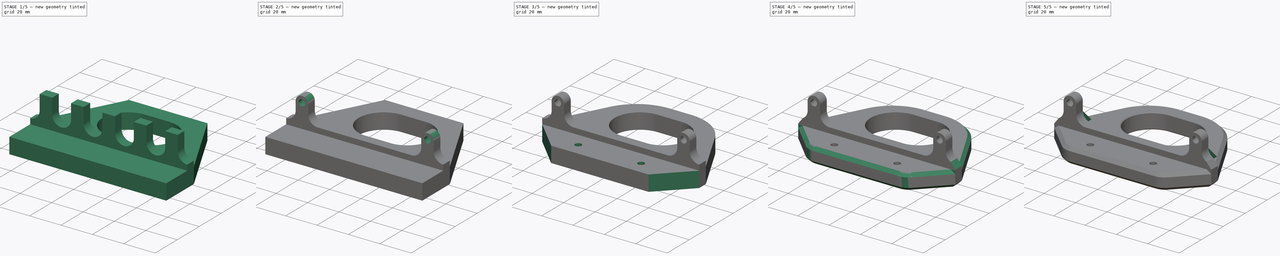
[diagram: build sequence overview — one tinted view per stage of 5, left to right]
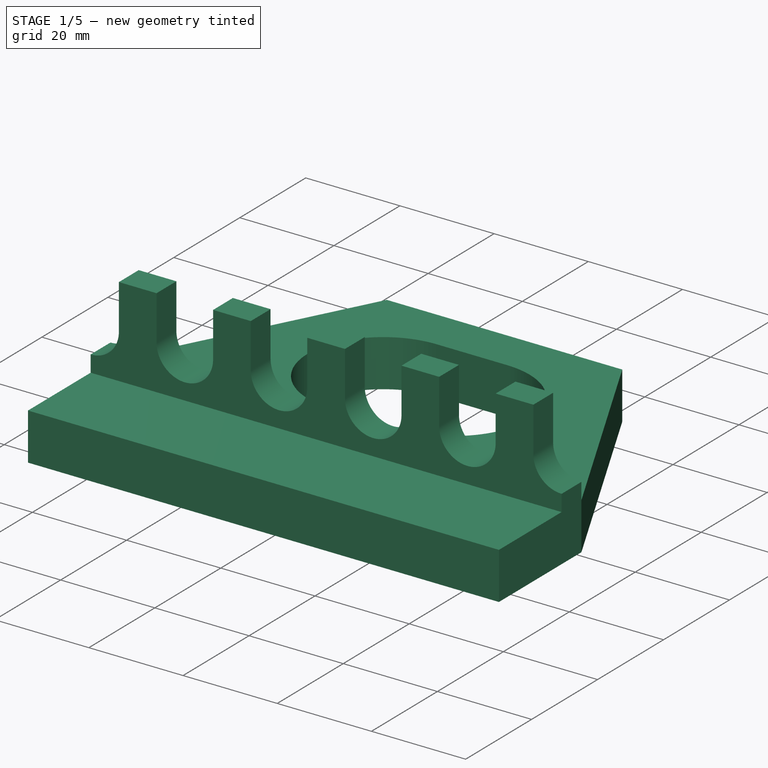
[diagram: stage 1 of 5 — iso view after this stage's code; geometry added in this stage tinted green]
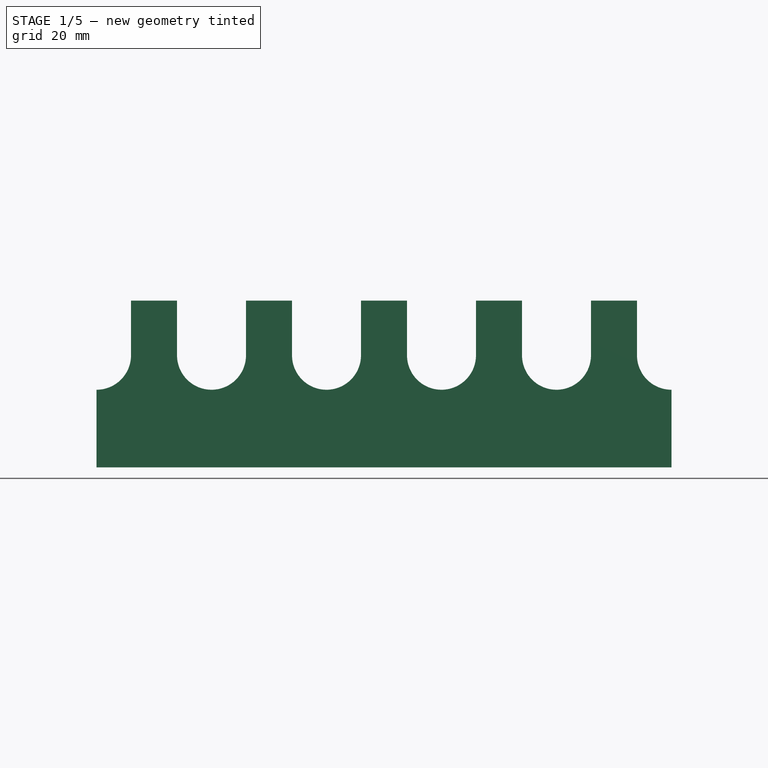
[diagram: stage 1 of 5 — front view after this stage's code; geometry added in this stage tinted green]
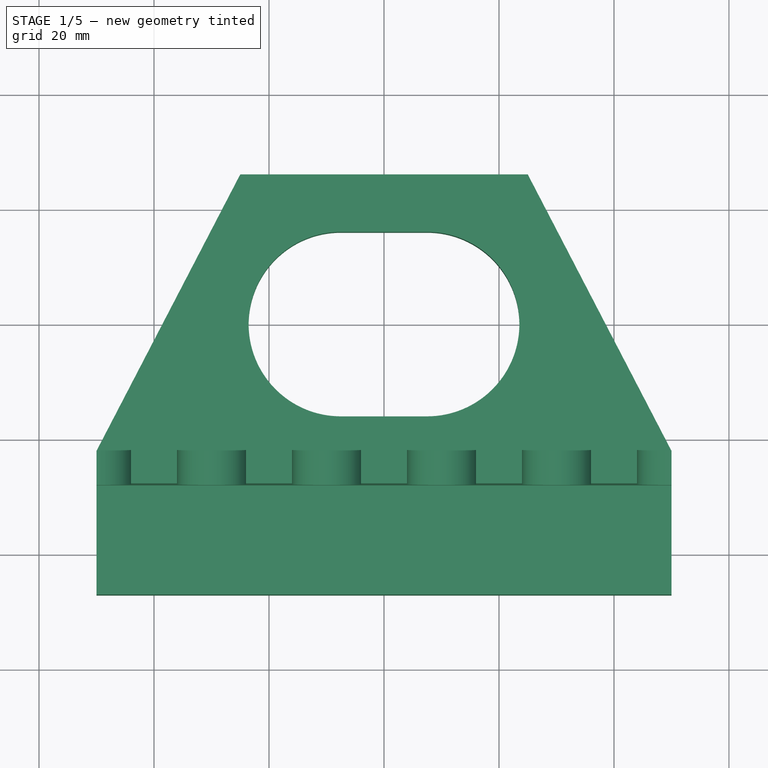
[diagram: stage 1 of 5 — top view after this stage's code; geometry added in this stage tinted green]
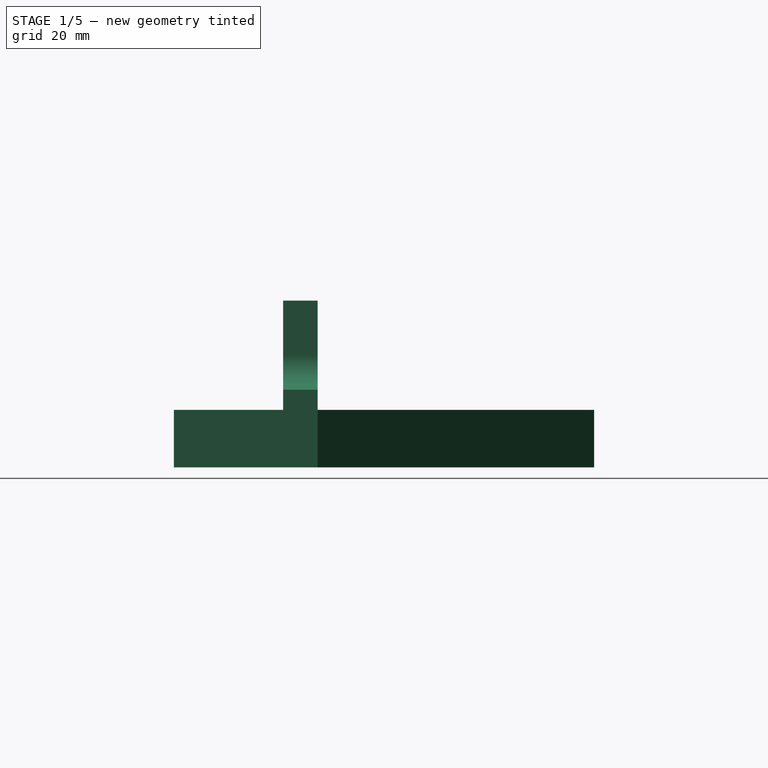
[diagram: stage 1 of 5 — right view after this stage's code; geometry added in this stage tinted green]
FCSTD DOCUMENT  (FreeCAD 0.18.4R)
Label: yoke
License: All rights reserved
LicenseURL: http://en.wikipedia.org/wiki/All_rights_reserved
objects: Sketcher::SketchObject×8, PartDesign::Pocket×5, PartDesign::Chamfer×5, PartDesign::Pad×3, PartDesign::Fillet×3, PartDesign::Mirrored×1, PartDesign::Body×1
note: 34 computed .brp shape members not serialized (recipe doc carries the construction recipe); baked Part::Feature solids carry a one-line shape summary decoded from their .brp

FEATURE [Sketcher::SketchObject] Sketch
  MapMode = 5
  Support = -> [XY_Plane]
  sketch-geometry (10):
    g0: ArcOfCircle CenterX=-7.5 CenterY=3e-16 CenterZ=0 NormalX=0 NormalY=0 NormalZ=1 AngleXU=0 Radius=16.05 StartAngle=1.5708 EndAngle=4.71239
    g1: ArcOfCircle CenterX=7.5 CenterY=-3e-16 CenterZ=0 NormalX=0 NormalY=0 NormalZ=1 AngleXU=0 Radius=16.05 StartAngle=4.71239 EndAngle=7.85398
    g2: LineSegment StartX=-7.5 StartY=-16.05 StartZ=0 EndX=7.5 EndY=-16.05 EndZ=0
    g3: LineSegment StartX=-7.5 StartY=16.05 StartZ=0 EndX=7.5 EndY=16.05 EndZ=0
    g4: LineSegment StartX=50 StartY=-22.05 StartZ=0 EndX=25 EndY=26.05 EndZ=0
    g5: LineSegment StartX=25 StartY=26.05 StartZ=0 EndX=-25 EndY=26.05 EndZ=0
    g6: LineSegment StartX=-25 StartY=26.05 StartZ=0 EndX=-50 EndY=-22.05 EndZ=0
    g7: LineSegment StartX=-50 StartY=-22.05 StartZ=0 EndX=-50 EndY=-47.05 EndZ=0
    g8: LineSegment StartX=-50 StartY=-47.05 StartZ=0 EndX=50 EndY=-47.05 EndZ=0
    g9: LineSegment StartX=50 StartY=-47.05 StartZ=0 EndX=50 EndY=-22.05 EndZ=0
  constraints (25):
    c: Tangent(g0,g3) = 1.5708
    c: Tangent(g0,g2) = -1.5708
    c: Tangent(g2,g1) = -1.5708
    c: Tangent(g3,g1) = 1.5708
    c: Horizontal(g2)
    c: Equal(g0,g1)
    c: Symmetric(g0,g1,g-1)
    c: DistanceX(g0,g1) = 15
    c: Radius(g1) = 16.05
    c: Coincident(g4,g5)
    c: Coincident(g5,g6)
    c: Symmetric(g6,g4,g-2)
    c: DistanceX(g5,g5) = 50
    c: Symmetric(g5,g4,g-2)
    c: DistanceY(g0,g5) = 10
    c: DistanceY(g4,g1) = 6
    c: Coincident(g6,g7)
    c: Vertical(g7)
    c: Coincident(g7,g8)
    c: Horizontal(g8)
    c: Coincident(g8,g9)
    c: Coincident(g9,g4)
    c: Vertical(g9)
    c: DistanceY(g7,g7) = 25
    c: DistanceX(g8,g8) = 100
FEATURE [PartDesign::Pad] Pad
  Length = 10
  Length2 = 100
  Profile = -> Sketch
  Refine = true
  Type = 0
FEATURE [Sketcher::SketchObject] Sketch001
  ExternalGeometry = -> [Pad]
  MapMode = 5
  Placement = pos=(0,0,10) rot=(0,0,1;0rad)
  Support = -> [Pad]
  sketch-geometry (4):
    g0: LineSegment StartX=-50 StartY=-22.05 StartZ=0 EndX=50 EndY=-22.05 EndZ=0
    g1: LineSegment StartX=50 StartY=-22.05 StartZ=0 EndX=50 EndY=-28.05 EndZ=0
    g2: LineSegment StartX=50 StartY=-28.05 StartZ=0 EndX=-50 EndY=-28.05 EndZ=0
    g3: LineSegment StartX=-50 StartY=-28.05 StartZ=0 EndX=-50 EndY=-22.05 EndZ=0
  constraints (11):
    c: Coincident(g0,g1)
    c: Coincident(g1,g2)
    c: Coincident(g2,g3)
    c: Coincident(g3,g0)
    c: Horizontal(g0)
    c: Horizontal(g2)
    c: Vertical(g1)
    c: Vertical(g3)
    c: Coincident(g0,g-3)
    c: PointOnObject(g1,g-4)
    c: DistanceY(g1,g1) = 6
FEATURE [PartDesign::Pad] Pad001
  BaseFeature = -> Pad
  Length = 19
  Length2 = 100
  Profile = -> Sketch001
  Refine = true
  Type = 0
FEATURE [Sketcher::SketchObject] Sketch002
  ExternalGeometry = -> [Pad001]
  MapMode = 5
  Placement = pos=(0,-22.05,0) rot=(0,0.707107,0.707107;3.14159rad)
  Support = -> [Pad001]
  sketch-geometry (35):
    g0: LineSegment [constr] StartX=-50 StartY=19.5 StartZ=0 EndX=50 EndY=19.5 EndZ=0
    g1: GeomPoint X=-10 Y=19.5 Z=0
    g2: GeomPoint X=-30 Y=19.5 Z=0
    g3: GeomPoint X=10 Y=19.5 Z=0
    g4: GeomPoint X=30 Y=19.5 Z=0
    g5: Circle [constr] CenterX=-30 CenterY=19.5 CenterZ=0 NormalX=0 NormalY=0 NormalZ=1 AngleXU=0 Radius=4
    g6: Circle [constr] CenterX=-10 CenterY=19.5 CenterZ=0 NormalX=0 NormalY=0 NormalZ=1 AngleXU=0 Radius=4
    g7: Circle [constr] CenterX=10 CenterY=19.5 CenterZ=0 NormalX=0 NormalY=0 NormalZ=1 AngleXU=0 Radius=4
    g8: Circle [constr] CenterX=30 CenterY=19.5 CenterZ=0 NormalX=0 NormalY=0 NormalZ=1 AngleXU=0 Radius=4
    g9: Circle [constr] CenterX=-50 CenterY=19.5 CenterZ=0 NormalX=0 NormalY=0 NormalZ=1 AngleXU=0 Radius=4
    g10: Circle [constr] CenterX=50 CenterY=19.5 CenterZ=0 NormalX=0 NormalY=0 NormalZ=1 AngleXU=0 Radius=4
    g11: ArcOfCircle CenterX=-50 CenterY=19.5 CenterZ=0 NormalX=0 NormalY=0 NormalZ=1 AngleXU=0 Radius=6 StartAngle=4.71239 EndAngle=6.28319
    g12: ArcOfCircle CenterX=-30 CenterY=19.5 CenterZ=0 NormalX=0 NormalY=0 NormalZ=1 AngleXU=0 Radius=6 StartAngle=3.14159 EndAngle=6.28319
    g13: ArcOfCircle CenterX=-10 CenterY=19.5 CenterZ=0 NormalX=0 NormalY=0 NormalZ=1 AngleXU=0 Radius=6 StartAngle=3.14159 EndAngle=6.28319
    g14: ArcOfCircle CenterX=10 CenterY=19.5 CenterZ=0 NormalX=0 NormalY=0 NormalZ=1 AngleXU=0 Radius=6 StartAngle=3.14159 EndAngle=6.28319
    g15: ArcOfCircle CenterX=30 CenterY=19.5 CenterZ=0 NormalX=0 NormalY=0 NormalZ=1 AngleXU=0 Radius=6 StartAngle=3.14159 EndAngle=6.28319
    g16: ArcOfCircle CenterX=50 CenterY=19.5 CenterZ=0 NormalX=0 NormalY=0 NormalZ=1 AngleXU=0 Radius=6 StartAngle=3.14159 EndAngle=4.71239
    g17: LineSegment StartX=-50 StartY=13.5 StartZ=0 EndX=-50 EndY=29 EndZ=0
    g18: LineSegment StartX=-50 StartY=29 StartZ=0 EndX=-44 EndY=29 EndZ=0
    g19: LineSegment StartX=-44 StartY=29 StartZ=0 EndX=-44 EndY=19.5 EndZ=0
    g20: LineSegment StartX=-36 StartY=19.5 StartZ=0 EndX=-36 EndY=29 EndZ=0
    g21: LineSegment StartX=-36 StartY=29 StartZ=0 EndX=-24 EndY=29 EndZ=0
    g22: LineSegment StartX=-24 StartY=29 StartZ=0 EndX=-24 EndY=19.5 EndZ=0
    g23: LineSegment StartX=-16 StartY=19.5 StartZ=0 EndX=-16 EndY=29 EndZ=0
    g24: LineSegment StartX=-16 StartY=29 StartZ=0 EndX=-4 EndY=29 EndZ=0
    g25: LineSegment StartX=-4 StartY=29 StartZ=0 EndX=-4 EndY=19.5 EndZ=0
    g26: LineSegment StartX=4 StartY=19.5 StartZ=0 EndX=4 EndY=29 EndZ=0
    g27: LineSegment StartX=4 StartY=29 StartZ=0 EndX=16 EndY=29 EndZ=0
    g28: LineSegment StartX=16 StartY=29 StartZ=0 EndX=16 EndY=19.5 EndZ=0
    g29: LineSegment StartX=24 StartY=19.5 StartZ=0 EndX=24 EndY=29 EndZ=0
    g30: LineSegment StartX=24 StartY=29 StartZ=0 EndX=36 EndY=29 EndZ=0
    g31: LineSegment StartX=36 StartY=29 StartZ=0 EndX=36 EndY=19.5 EndZ=0
    g32: LineSegment StartX=44 StartY=19.5 StartZ=0 EndX=44 EndY=29 EndZ=0
    g33: LineSegment StartX=44 StartY=29 StartZ=0 EndX=50 EndY=29 EndZ=0
    g34: LineSegment StartX=50 StartY=29 StartZ=0 EndX=50 EndY=13.5 EndZ=0
  constraints (89):
    c: DistanceY(g-3,g-3) = 19
    c: PointOnObject(g0,g-4)
    c: Horizontal(g0)
    c: Symmetric(g-3,g-3,g0)
    c: PointOnObject(g1,g0)
    c: PointOnObject(g2,g0)
    c: DistanceX(g3,g4) = 20
    c: DistanceX(g1,g3) = 20
    c: Symmetric(g2,g4,g-2)
    c: Symmetric(g1,g3,g-2)
    c: Coincident(g5,g2)
    c: Coincident(g6,g1)
    c: Coincident(g7,g3)
    c: Coincident(g8,g4)
    c: PointOnObject(g10,g0)
    c: DistanceX(g4,g10) = 20
    c: Symmetric(g0,g9,g-2)
    c: Equal(g9,g5)
    c: Equal(g5,g6)
    c: Equal(g6,g7)
    c: Equal(g7,g8)
    c: Equal(g8,g10)
    c: Coincident(g11,g0)
    c: PointOnObject(g11,g-3)
    c: Coincident(g12,g2)
    c: Coincident(g14,g3)
    c: Coincident(g15,g4)
    c: Coincident(g16,g0)
    c: PointOnObject(g16,g-4)
    c: Coincident(g13,g1)
    c: Equal(g11,g12)
    c: Equal(g12,g13)
    c: Equal(g13,g14)
    c: Equal(g14,g15)
    c: Equal(g15,g16)
    c: Horizontal(g11,g12)
    c: Horizontal(g12,g12)
    c: Horizontal(g12,g13)
    c: Horizontal(g13,g13)
    c: Horizontal(g13,g14)
    c: Horizontal(g14,g14)
    c: Horizontal(g14,g15)
    c: Horizontal(g15,g15)
    c: Horizontal(g15,g16)
    c: PointOnObject(g12,g0)
    c: Radius(g12) = 6
    c: Radius(g5) = 4
    c: Coincident(g11,g17)
    c: Coincident(g17,g18)
    c: PointOnObject(g18,g-5)
    c: Horizontal(g18)
    c: Coincident(g18,g19)
    c: Coincident(g19,g11)
    c: Vertical(g17)
    c: Vertical(g19)
    c: Tangent(g12,g20) = 1.5708
    c: Coincident(g20,g21)
    c: PointOnObject(g21,g-5)
    c: Horizontal(g21)
    c: Coincident(g21,g22)
    c: Coincident(g22,g12)
    c: Tangent(g13,g23) = 1.5708
    c: Coincident(g23,g24)
    c: PointOnObject(g24,g-5)
    c: Horizontal(g24)
    c: Coincident(g24,g25)
    c: Coincident(g25,g13)
    c: Tangent(g14,g26) = 1.5708
    c: Coincident(g26,g27)
    c: PointOnObject(g27,g-5)
    c: Horizontal(g27)
    c: Coincident(g27,g28)
    c: Coincident(g28,g14)
    c: Vertical(g28)
    c: Tangent(g15,g29) = 1.5708
    c: Coincident(g29,g30)
    c: PointOnObject(g30,g-5)
    c: Horizontal(g30)
    c: Coincident(g30,g31)
    c: Coincident(g31,g15)
    c: Vertical(g31)
    c: Tangent(g16,g32) = 1.5708
    c: Coincident(g32,g33)
    c: Coincident(g33,g-5)
    c: Horizontal(g33)
    c: Coincident(g33,g34)
    c: Coincident(g34,g16)
    c: Vertical(g25)
    c: Vertical(g22)
FEATURE [PartDesign::Pocket] Pocket
  BaseFeature = -> Pad001
  Length = 5
  Length2 = 100
  Profile = -> Sketch002
  Refine = true
  Type = 1
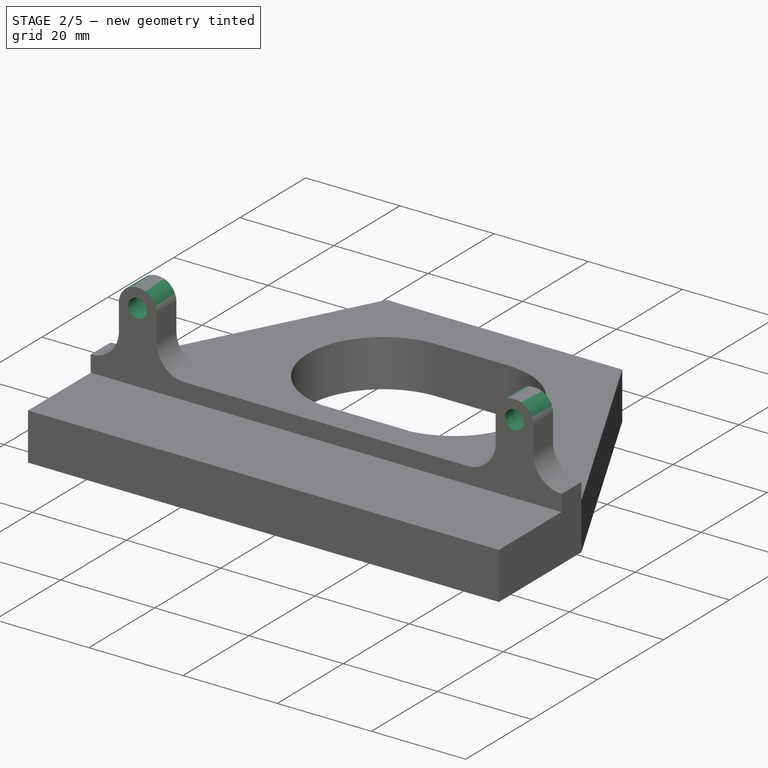
[diagram: stage 2 of 5 — iso view after this stage's code; geometry added in this stage tinted green]
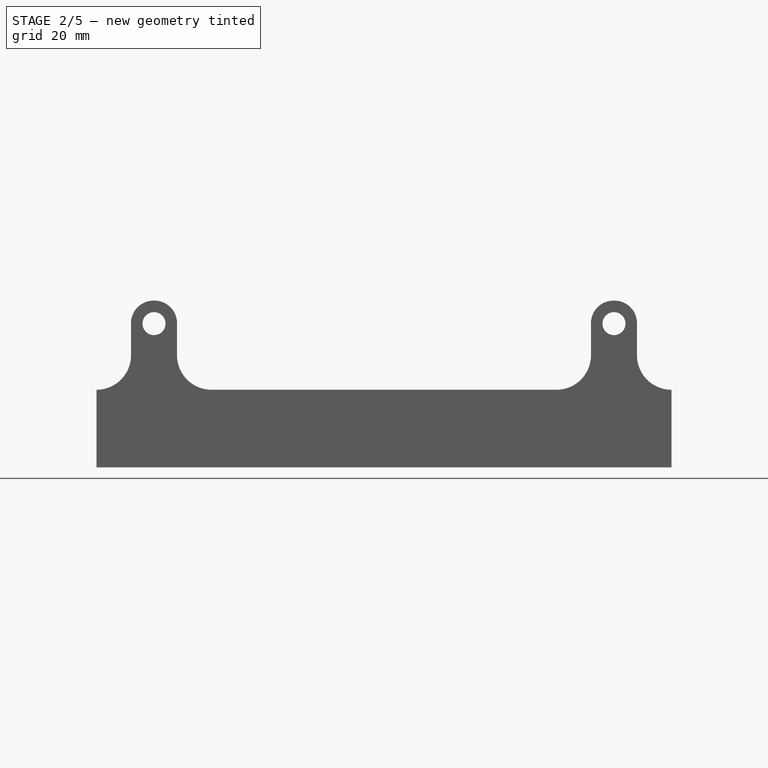
[diagram: stage 2 of 5 — front view after this stage's code; geometry added in this stage tinted green]
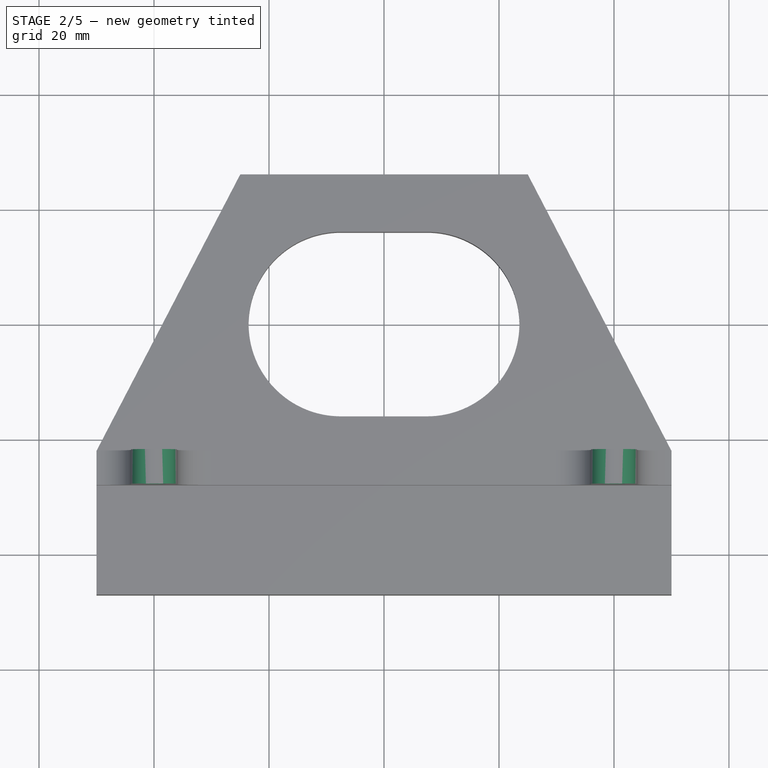
[diagram: stage 2 of 5 — top view after this stage's code; geometry added in this stage tinted green]
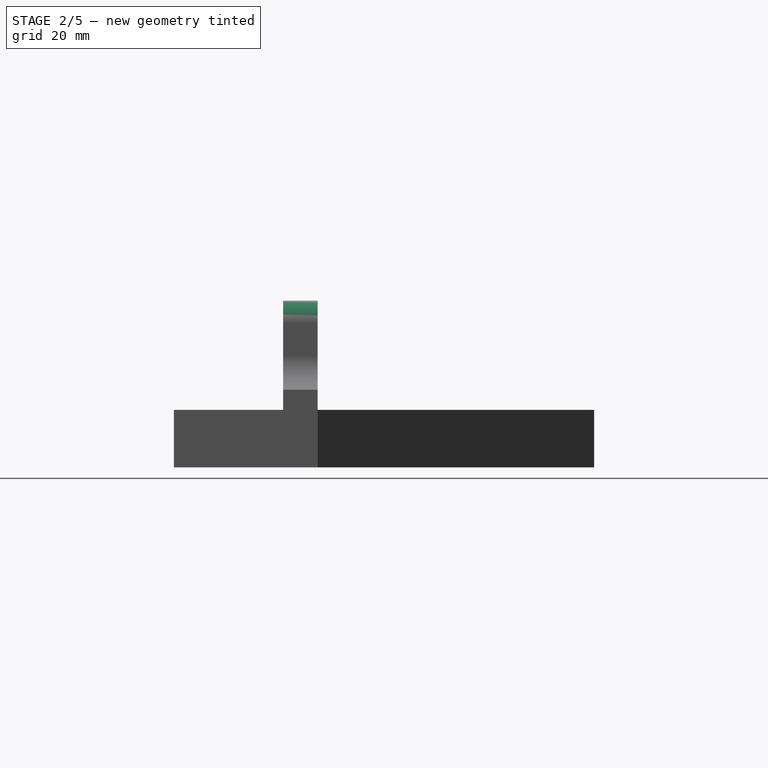
[diagram: stage 2 of 5 — right view after this stage's code; geometry added in this stage tinted green]
FEATURE [Sketcher::SketchObject] Sketch003
  ExternalGeometry = -> [Pocket]
  MapMode = 5
  Placement = pos=(0,-22.05,0) rot=(0,0.707107,0.707107;3.14159rad)
  Support = -> [Pocket]
  sketch-geometry (4):
    g0: LineSegment StartX=-30 StartY=29 StartZ=0 EndX=30 EndY=29 EndZ=0
    g1: LineSegment StartX=30 StartY=29 StartZ=0 EndX=30 EndY=13.5 EndZ=0
    g2: LineSegment StartX=30 StartY=13.5 StartZ=0 EndX=-30 EndY=13.5 EndZ=0
    g3: LineSegment StartX=-30 StartY=13.5 StartZ=0 EndX=-30 EndY=29 EndZ=0
  constraints (12):
    c: Coincident(g0,g1)
    c: Coincident(g1,g2)
    c: Coincident(g2,g3)
    c: Horizontal(g0)
    c: Horizontal(g2)
    c: Vertical(g1)
    c: Vertical(g3)
    c: Tangent(g2,g-3)
    c: Coincident(g3,g0)
    c: PointOnObject(g2,g-4)
    c: PointOnObject(g1,g-5)
    c: PointOnObject(g-6,g0)
FEATURE [PartDesign::Pocket] Pocket001
  BaseFeature = -> Pocket
  Length = 5
  Length2 = 100
  Profile = -> Sketch003
  Refine = true
  Type = 1
FEATURE [Sketcher::SketchObject] Sketch004
  ExternalGeometry = -> [Pocket001]
  MapMode = 5
  Placement = pos=(0,-22.05,0) rot=(0,0.707107,0.707107;3.14159rad)
  Support = -> [Pocket001]
  sketch-geometry (3):
    g0: Circle CenterX=-40 CenterY=25 CenterZ=0 NormalX=0 NormalY=0 NormalZ=1 AngleXU=0 Radius=2
    g1: Circle CenterX=40 CenterY=25 CenterZ=0 NormalX=0 NormalY=0 NormalZ=1 AngleXU=0 Radius=2
    g2: LineSegment [constr] StartX=-40 StartY=25 StartZ=0 EndX=-40 EndY=29 EndZ=0
  constraints (7):
    c: Equal(g1,g0)
    c: Symmetric(g0,g1,g-2)
    c: Radius(g0) = 2
    c: Coincident(g2,g0)
    c: PointOnObject(g2,g-3)
    c: Symmetric(g-3,g-3,g2)
    c: DistanceY(g0,g-3) = 4
FEATURE [PartDesign::Pocket] Pocket002
  BaseFeature = -> Pocket001
  Length = 5
  Length2 = 100
  Profile = -> Sketch004
  Refine = true
  Type = 1
FEATURE [Sketcher::SketchObject] Sketch005
  ExternalGeometry = -> [Pocket002]
  MapMode = 5
  Placement = pos=(0,-22.05,0) rot=(0,0.707107,0.707107;3.14159rad)
  Support = -> [Pocket002]
  sketch-geometry (2):
    g0: Circle CenterX=-40 CenterY=25 CenterZ=0 NormalX=0 NormalY=0 NormalZ=1 AngleXU=0 Radius=3
    g1: Circle CenterX=40 CenterY=25 CenterZ=0 NormalX=0 NormalY=0 NormalZ=1 AngleXU=0 Radius=3
  constraints (4):
    c: Coincident(g0,g-3)
    c: Coincident(g1,g-4)
    c: Radius(g1) = 3
    c: Equal(g0,g1)
FEATURE [PartDesign::Pocket] Pocket003
  BaseFeature = -> Pocket002
  Length = 3.5
  Length2 = 100
  Profile = -> Sketch005
  Refine = true
  Type = 0
FEATURE [PartDesign::Fillet] Fillet
  Base = -> Pocket003 [Edge69,Edge67,Edge70,Edge68]
  BaseFeature = -> Pocket003
  Radius = 3.9
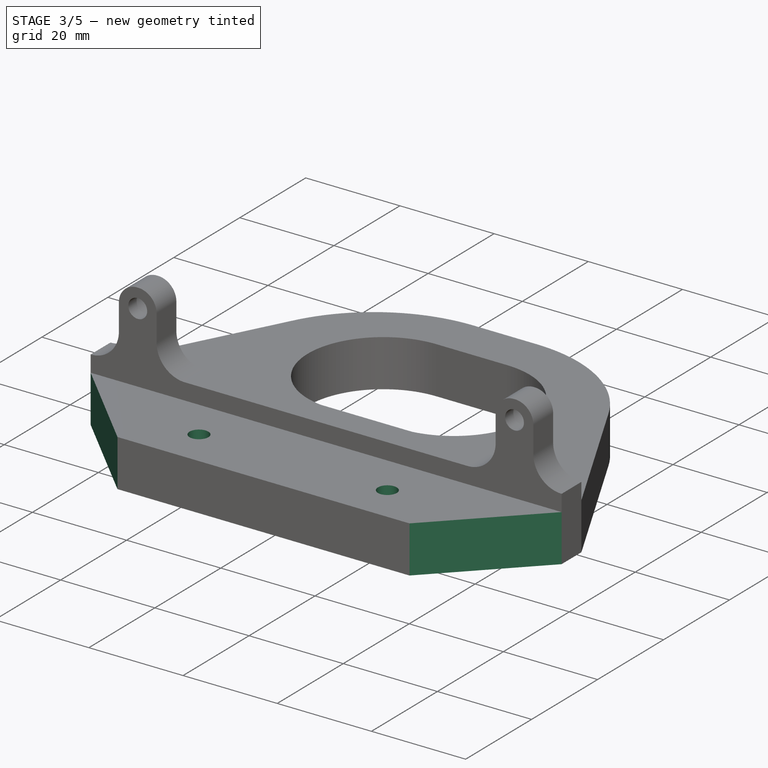
[diagram: stage 3 of 5 — iso view after this stage's code; geometry added in this stage tinted green]
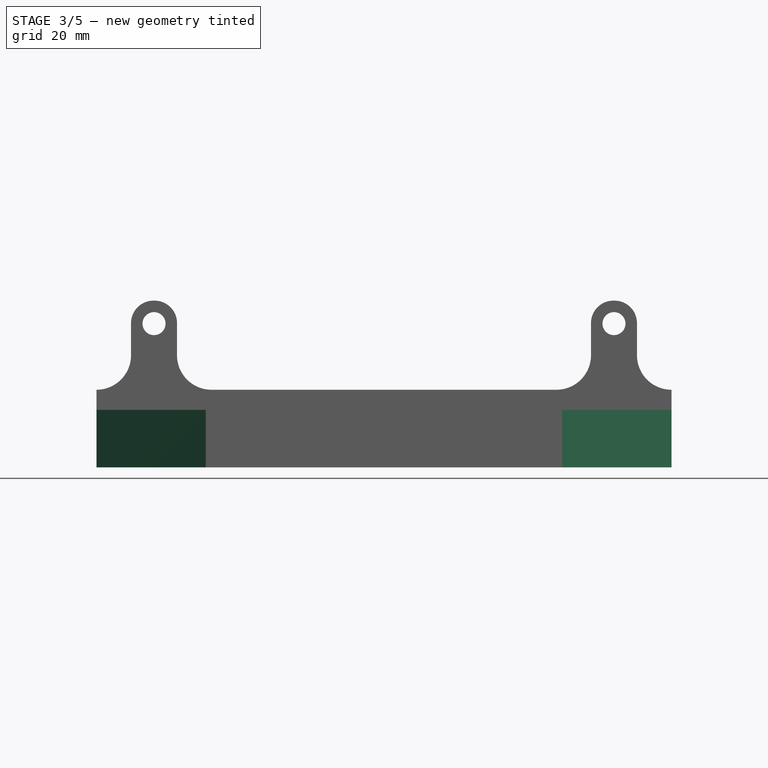
[diagram: stage 3 of 5 — front view after this stage's code; geometry added in this stage tinted green]
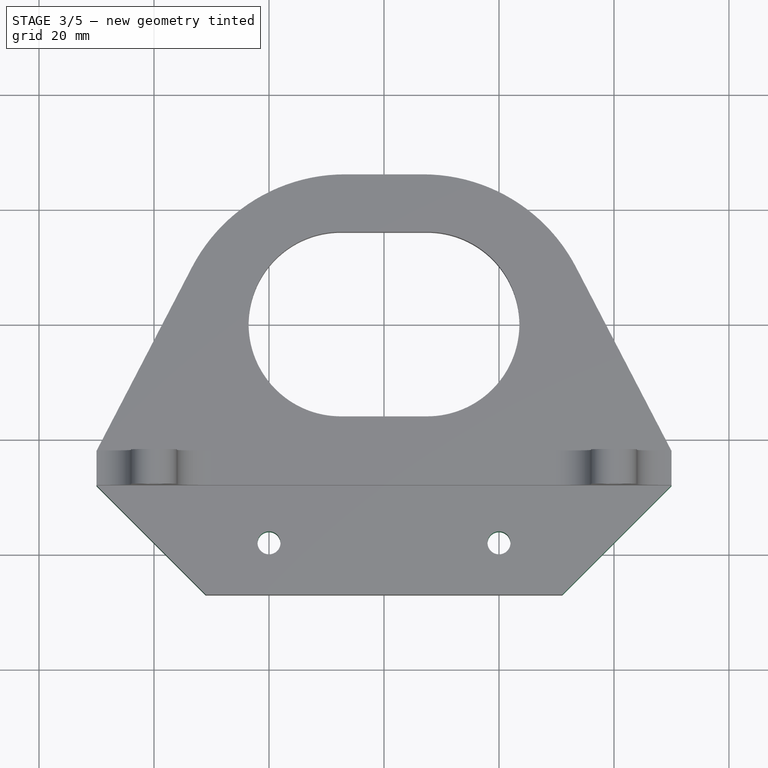
[diagram: stage 3 of 5 — top view after this stage's code; geometry added in this stage tinted green]
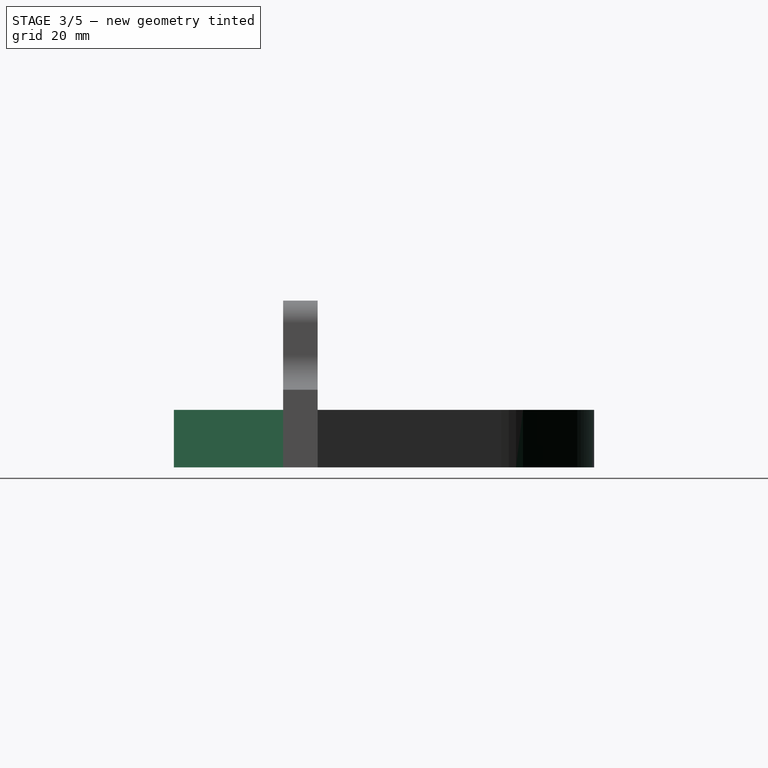
[diagram: stage 3 of 5 — right view after this stage's code; geometry added in this stage tinted green]
FEATURE [PartDesign::Fillet] Fillet001
  Base = -> Fillet [Edge71,Edge80]
  BaseFeature = -> Fillet
  Radius = 30
FEATURE [Sketcher::SketchObject] Sketch006
  ExternalGeometry = -> [Fillet001]
  MapMode = 5
  Placement = pos=(0,0,10) rot=(0,0,1;0rad)
  Support = -> [Fillet001]
  sketch-geometry (2):
    g0: Circle CenterX=-20 CenterY=-38.05 CenterZ=0 NormalX=0 NormalY=0 NormalZ=1 AngleXU=0 Radius=2
    g1: Circle CenterX=20 CenterY=-38.05 CenterZ=0 NormalX=0 NormalY=0 NormalZ=1 AngleXU=0 Radius=2
  constraints (5):
    c: Symmetric(g1,g0,g-2)
    c: DistanceX(g0,g1) = 40
    c: Radius(g0) = 2
    c: Equal(g1,g0)
    c: DistanceY(g0,g-3) = 10
FEATURE [PartDesign::Pocket] Pocket004
  BaseFeature = -> Fillet001
  Length = 5
  Length2 = 100
  Profile = -> Sketch006
  Refine = true
  Type = 1
FEATURE [PartDesign::Chamfer] Chamfer
  Base = -> Pocket004 [Edge34,Edge20]
  BaseFeature = -> Pocket004
  Size = 19
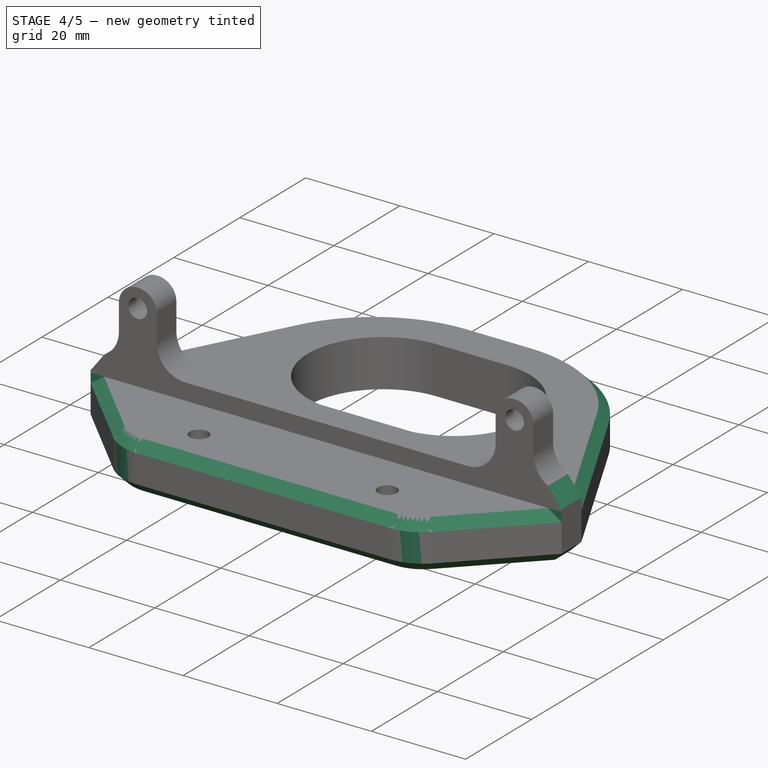
[diagram: stage 4 of 5 — iso view after this stage's code; geometry added in this stage tinted green]
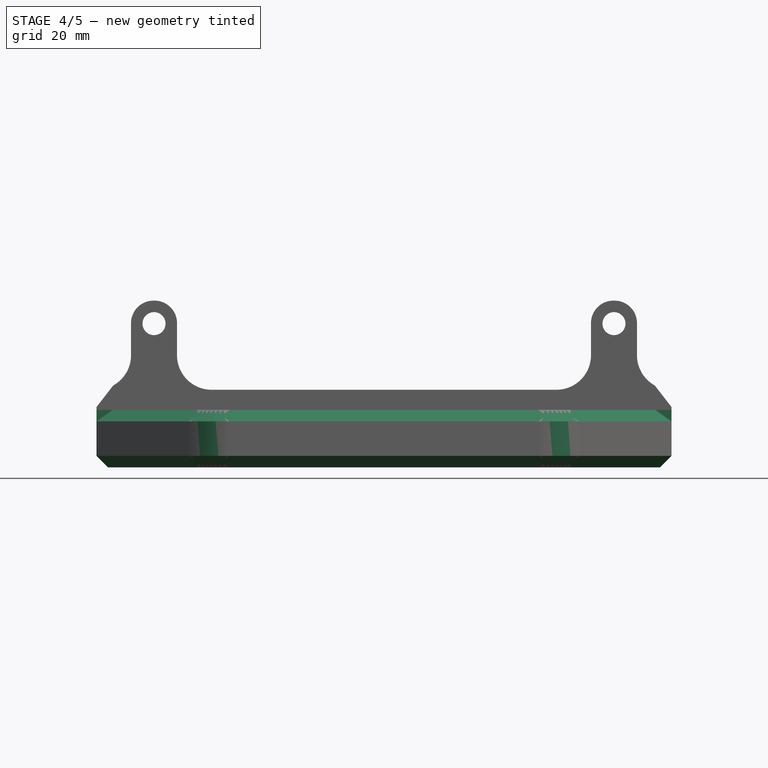
[diagram: stage 4 of 5 — front view after this stage's code; geometry added in this stage tinted green]
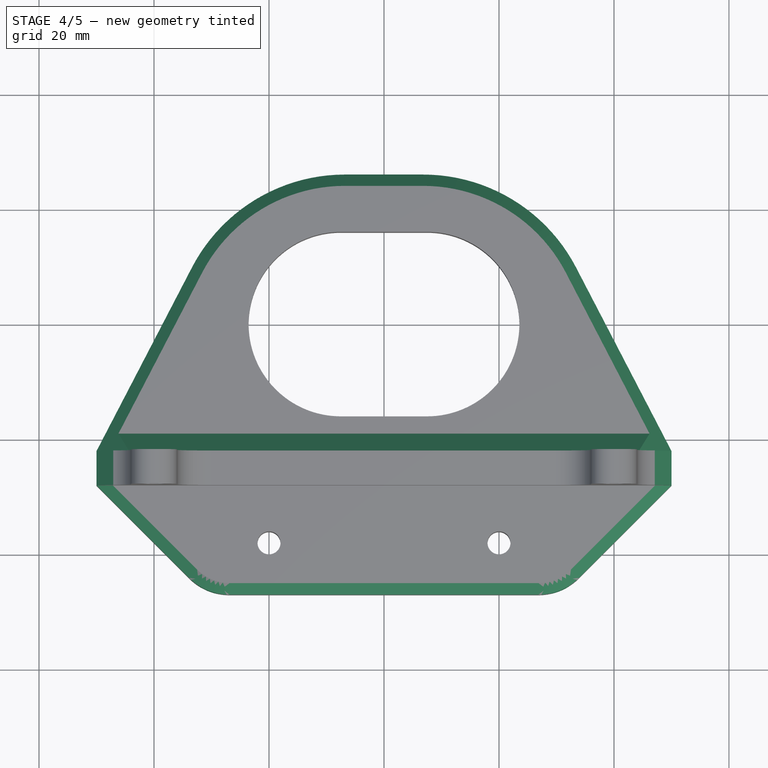
[diagram: stage 4 of 5 — top view after this stage's code; geometry added in this stage tinted green]
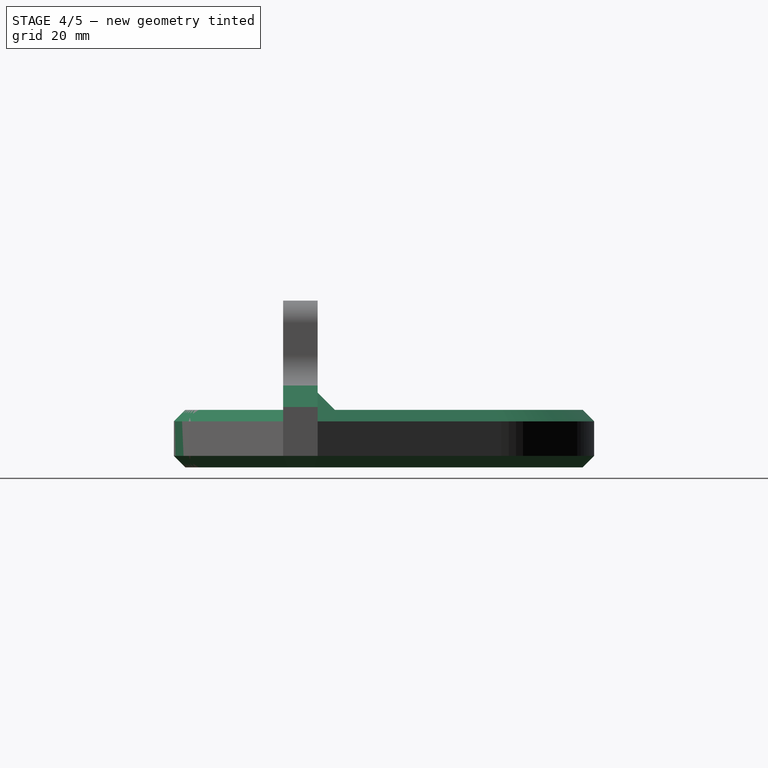
[diagram: stage 4 of 5 — right view after this stage's code; geometry added in this stage tinted green]
FEATURE [PartDesign::Fillet] Fillet002
  Base = -> Chamfer [Edge26,Edge22]
  BaseFeature = -> Chamfer
  Radius = 10
FEATURE [PartDesign::Chamfer] Chamfer001
  Base = -> Fillet002 [Edge12,Edge10,Edge8,Edge3,Edge46,Edge37]
  BaseFeature = -> Fillet002
  Size = 2
FEATURE [PartDesign::Chamfer] Chamfer002
  Base = -> Chamfer001 [Edge84,Edge62]
  BaseFeature = -> Chamfer001
  Size = 3
FEATURE [PartDesign::Chamfer] Chamfer003
  Base = -> Chamfer002 [Edge41]
  BaseFeature = -> Chamfer002
  Size = 3
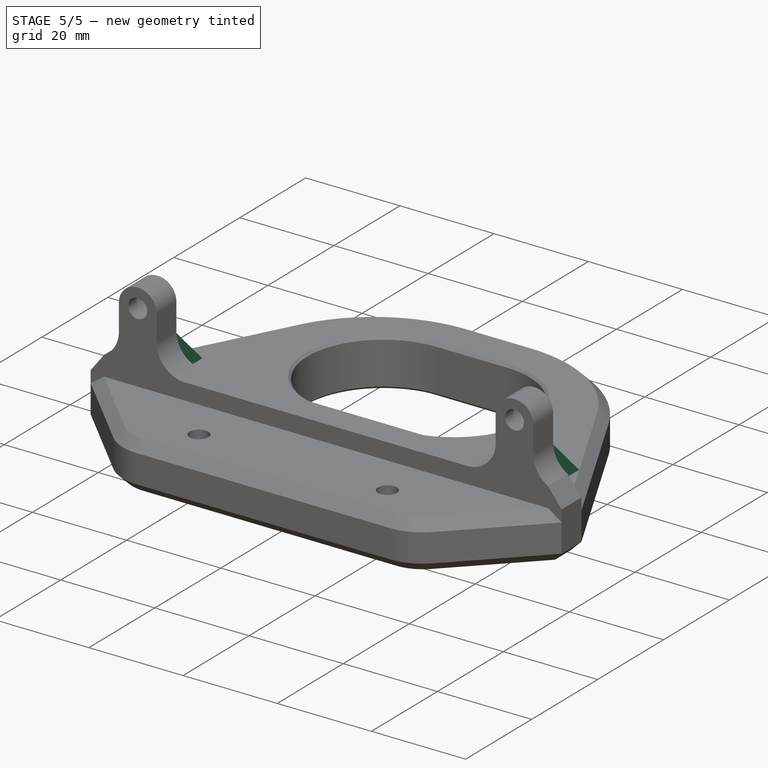
[diagram: stage 5 of 5 — iso view after this stage's code; geometry added in this stage tinted green]
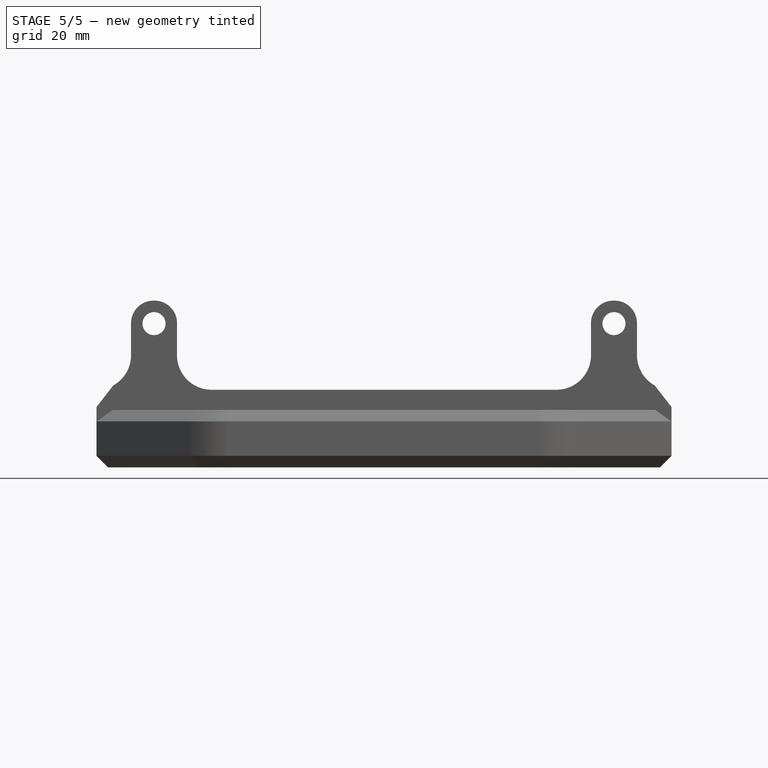
[diagram: stage 5 of 5 — front view after this stage's code; geometry added in this stage tinted green]
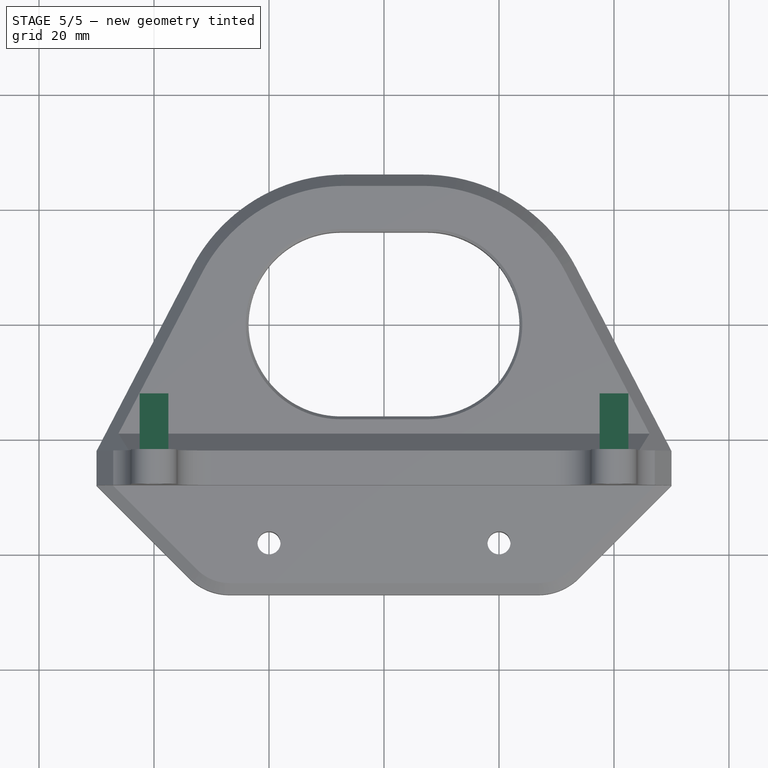
[diagram: stage 5 of 5 — top view after this stage's code; geometry added in this stage tinted green]
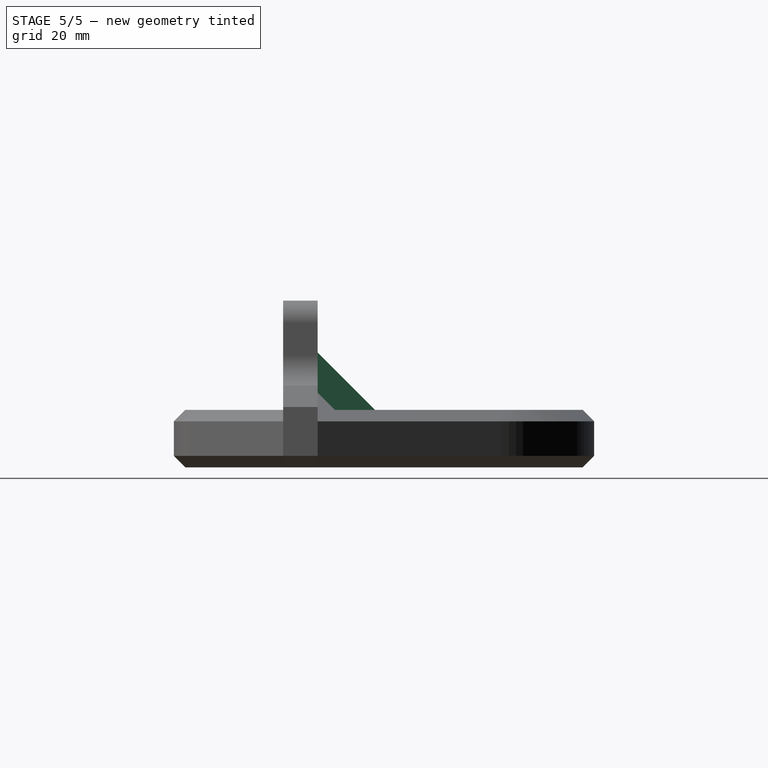
[diagram: stage 5 of 5 — right view after this stage's code; geometry added in this stage tinted green]
FEATURE [PartDesign::Chamfer] Chamfer004
  Base = -> Chamfer003 [Edge126,Edge91]
  BaseFeature = -> Chamfer003
  Size = 0.5
FEATURE [Sketcher::SketchObject] Sketch007
  AttachmentOffset = pos=(0,0,-40) rot=(0,0,1;0rad)
  ExternalGeometry = -> [Chamfer004]
  MapMode = 5
  Placement = pos=(-40,8.9e-15,-8.9e-15) rot=(0.57735,0.57735,0.57735;2.0944rad)
  Support = -> [YZ_Plane]
  sketch-geometry (3):
    g0: LineSegment StartX=-22.05 StartY=20 StartZ=0 EndX=-22.05 EndY=10 EndZ=0
    g1: LineSegment StartX=-22.05 StartY=10 StartZ=0 EndX=-12.05 EndY=10 EndZ=0
    g2: LineSegment StartX=-12.05 StartY=10 StartZ=0 EndX=-22.05 EndY=20 EndZ=0
  constraints (9):
    c: PointOnObject(g0,g-3)
    c: Vertical(g0)
    c: Coincident(g0,g1)
    c: Horizontal(g1)
    c: Coincident(g1,g2)
    c: Coincident(g2,g0)
    c: PointOnObject(g1,g-4)
    c: Angle(g2) = 2.35619
    c: DistanceY(g0,g0) = 10
FEATURE [PartDesign::Pad] Pad002
  BaseFeature = -> Chamfer004
  Length = 5
  Length2 = 100
  Midplane = true
  Profile = -> Sketch007
  Refine = true
  Type = 0
FEATURE [PartDesign::Mirrored] Mirrored
  BaseFeature = -> Pad002
  MirrorPlane = -> YZ_Plane
  Originals = -> [Pad002]
  Refine = true
FEATURE [PartDesign::Body] Body
  Group = -> [Sketch,Pad,Sketch001,Pad001,Sketch002,Pocket,Sketch003,Pocket001,Sketch004,Pocket002,Sketch005,Pocket003,Fillet,Fillet001,Sketch006,Pocket004,Chamfer,Fillet002,Chamfer001,Chamfer002,Chamfer003,Chamfer004,Sketch007,Pad002,Mirrored]
  Origin = -> Origin
  Tip = -> Mirrored
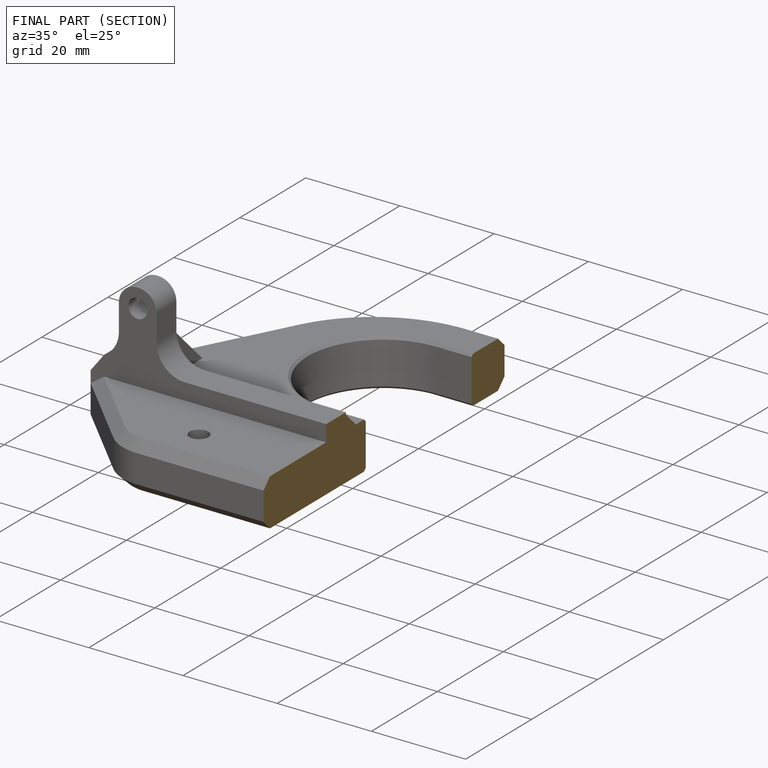
[diagram: finished part — half-section view (interior)]
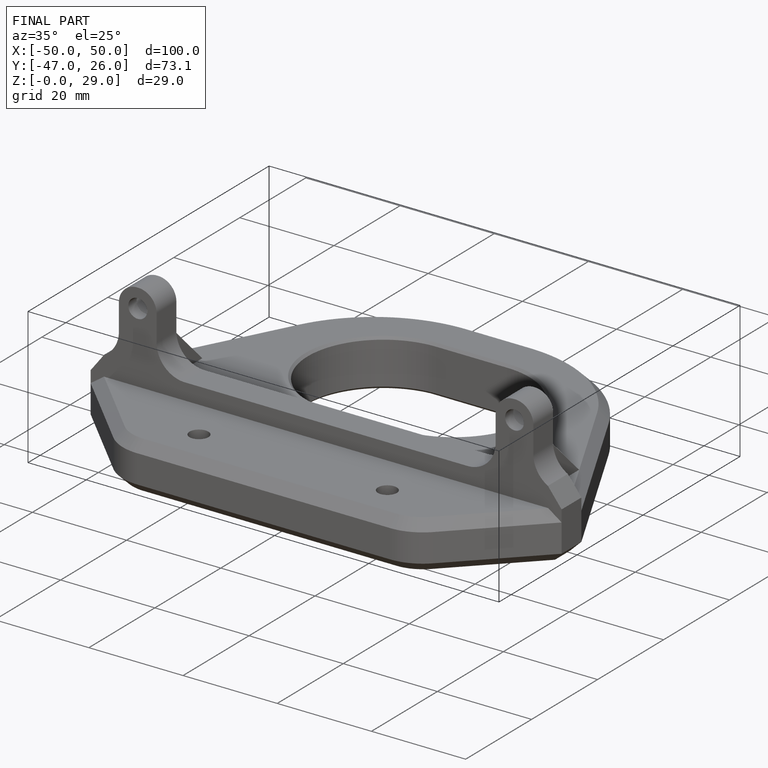
[diagram: finished part — iso view with bounding-box wireframe]
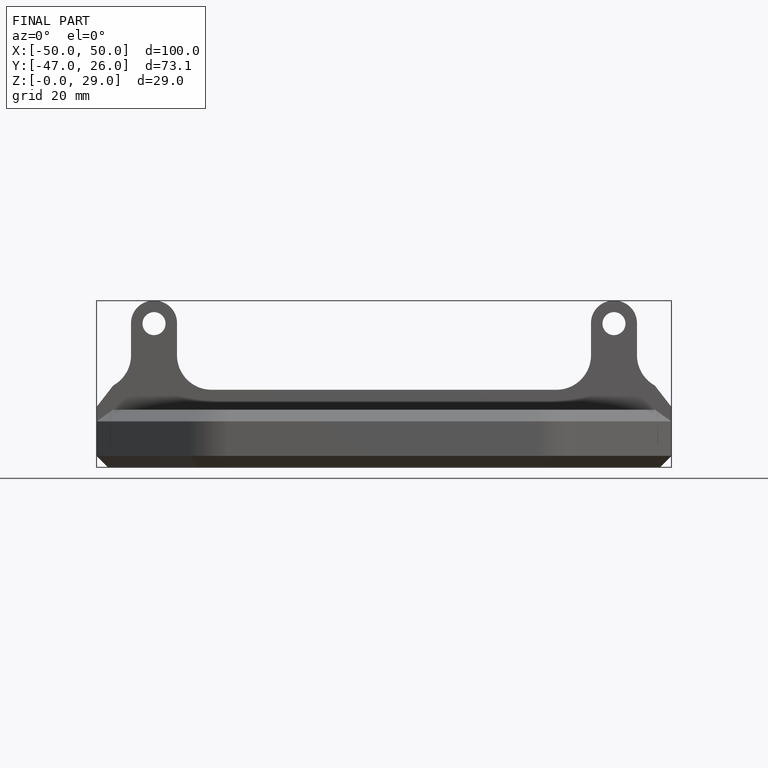
[diagram: finished part — front view with bounding-box wireframe]
